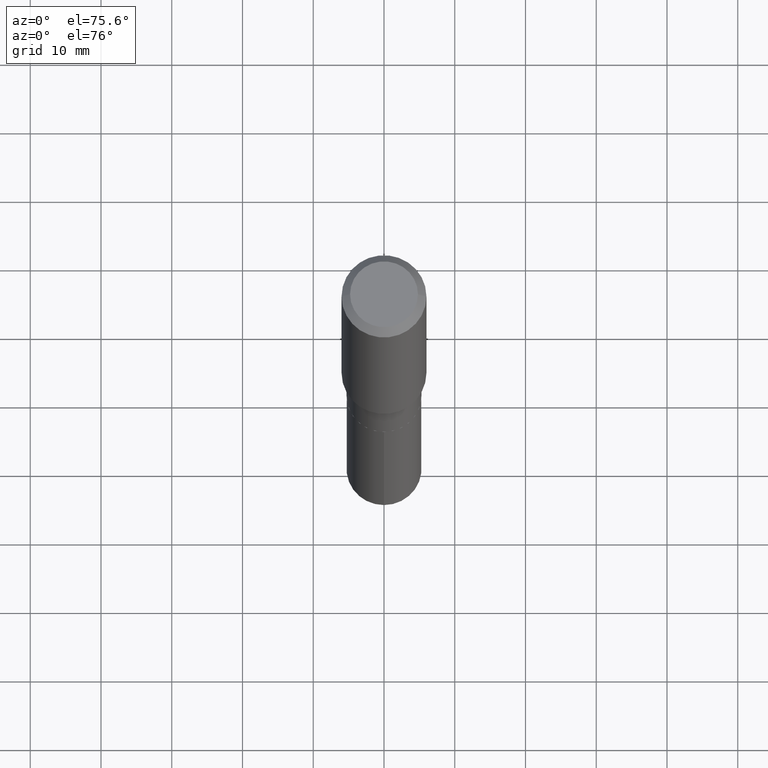
[diagram: clean part render]
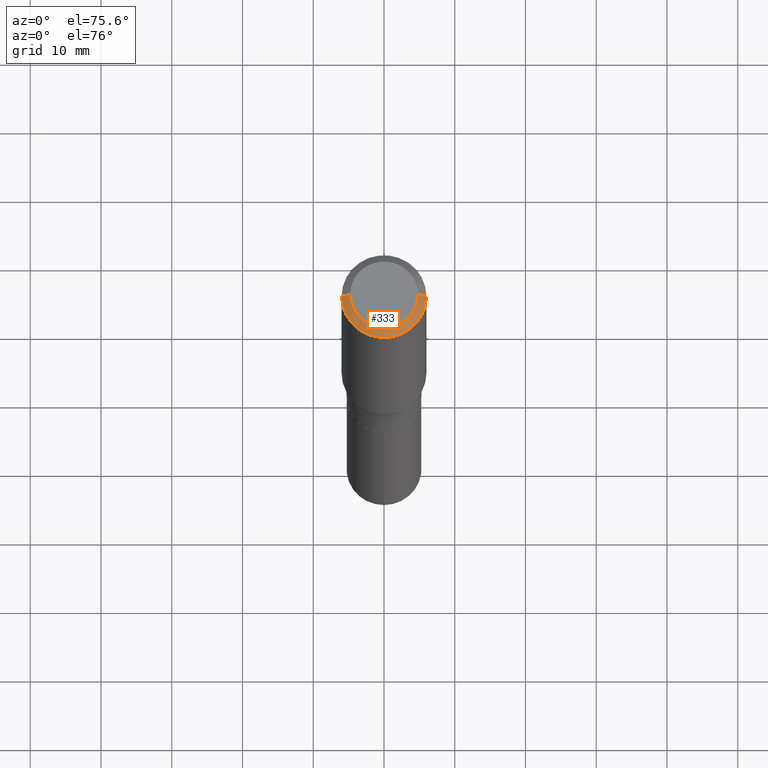
[diagram: same view with one face highlighted and labeled with its STEP entity id]
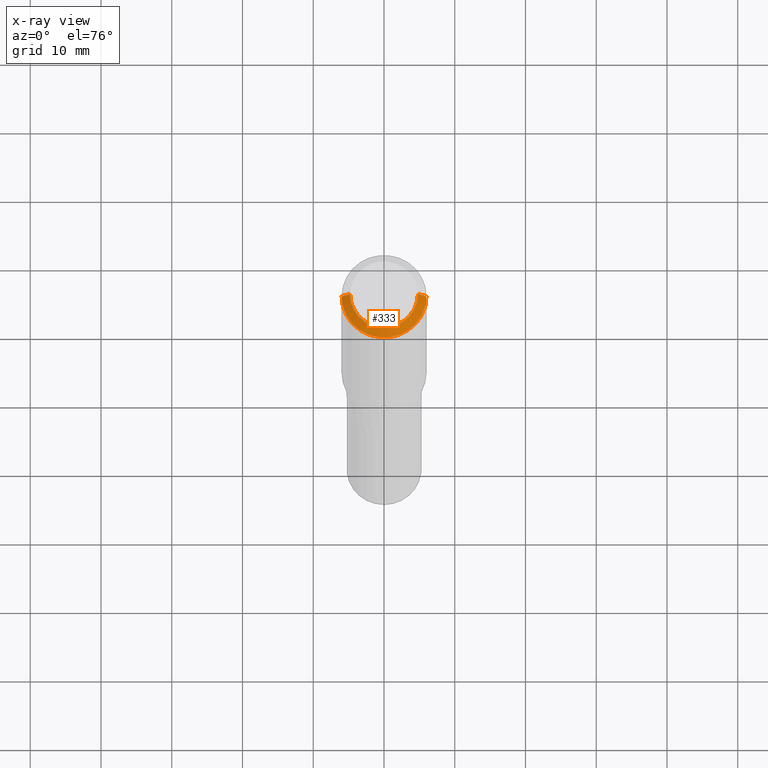
[diagram: x-ray of the same camera — body ghosted, the highlighted face saturated]
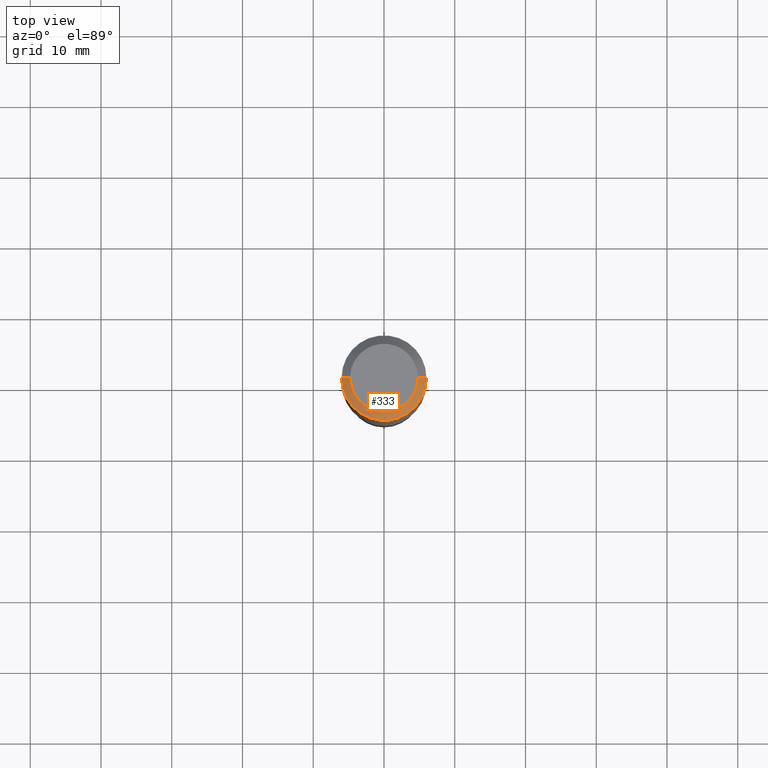
[diagram: same view with one face highlighted and labeled with its STEP entity id]
A machine part, auxiliary view. The second image highlights one B-rep face of the part: STEP entity #333.
The next image is the same camera in x-ray: the body ghosted, the highlighted face saturated — about 0% of this face is hidden behind the body in this view.
A second angle (top view) of the same face is appended — the face is thin or edge-on in the first view.
In plain terms, the highlighted conical surface has half-angle 45 deg.
Its self-contained STEP definition (entity closure, byte-faithful):
#4 = CIRCLE ( 'NONE', #62, 0.1889600000000000168 ) ;
#33 = AXIS2_PLACEMENT_3D ( 'NONE', #297, #299, #56 ) ;
#34 = LINE ( 'NONE', #139, #279 ) ;
#55 = ORIENTED_EDGE ( 'NONE', *, *, #440, .T. ) ;
#56 = DIRECTION ( 'NONE',  ( -1.000000000000000000, 6.982962677686266711E-15, 0.000000000000000000 ) ) ;
#62 = AXIS2_PLACEMENT_3D ( 'NONE', #453, #138, #414 ) ;
#90 = ORIENTED_EDGE ( 'NONE', *, *, #312, .F. ) ;
#96 = DIRECTION ( 'NONE',  ( 1.000000000000000000, -6.982962677686266711E-15, 0.000000000000000000 ) ) ;
#105 = CARTESIAN_POINT ( 'NONE',  ( -0.2361999999999999933, -1.476932286640498674E-15, -0.04724000000000028177 ) ) ;
#109 = DIRECTION ( 'NONE',  ( 0.7071067811865453523, -7.319954787623248157E-15, -0.7071067811865496822 ) ) ;
#127 = CARTESIAN_POINT ( 'NONE',  ( 0.1889600000000000168, -1.540873453589747738E-15, 3.855188123725863225E-18 ) ) ;
#138 = DIRECTION ( 'NONE',  ( -2.445468806185136597E-29, 3.491481338843145583E-15, 1.000000000000000000 ) ) ;
#139 = CARTESIAN_POINT ( 'NONE',  ( 0.2361999999999999933, -1.785387205520586782E-15, -0.04724000000000028177 ) ) ;
#147 = FACE_OUTER_BOUND ( 'NONE', #355, .T. ) ;
#160 = ORIENTED_EDGE ( 'NONE', *, *, #234, .F. ) ;
#200 = EDGE_CURVE ( 'NONE', #239, #275, #372, .T. ) ;
#216 = CIRCLE ( 'NONE', #254, 0.2361999999999999933 ) ;
#234 = EDGE_CURVE ( 'NONE', #488, #344, #34, .T. ) ;
#239 = VERTEX_POINT ( 'NONE', #281 ) ;
#254 = AXIS2_PLACEMENT_3D ( 'NONE', #316, #437, #96 ) ;
#263 = VECTOR ( 'NONE', #415, 39.37007874015748143 ) ;
#275 = VERTEX_POINT ( 'NONE', #105 ) ;
#279 = VECTOR ( 'NONE', #109, 39.37007874015748143 ) ;
#281 = CARTESIAN_POINT ( 'NONE',  ( -0.1889600000000000168, 1.401969416799070942E-15, 3.855188123706346622E-18 ) ) ;
#290 = CARTESIAN_POINT ( 'NONE',  ( -0.2361999999999999933, 1.484438206022545019E-15, -0.04724000000000028177 ) ) ;
#291 = CARTESIAN_POINT ( 'NONE',  ( 0.2361999999999999933, -1.814313362916447440E-15, -0.04724000000000028177 ) ) ;
#297 = CARTESIAN_POINT ( 'NONE',  ( 1.155239464041865506E-30, -1.649375784469511859E-16, -0.04724000000000028177 ) ) ;
#299 = DIRECTION ( 'NONE',  ( 2.445468806185136597E-29, -3.491481338843145583E-15, -1.000000000000000000 ) ) ;
#312 = EDGE_CURVE ( 'NONE', #239, #488, #4, .T. ) ;
#316 = CARTESIAN_POINT ( 'NONE',  ( 1.155239464041865506E-30, -1.649375784469511859E-16, -0.04724000000000028177 ) ) ;
#333 = ADVANCED_FACE ( 'NONE', ( #147 ), #378, .T. ) ;
#341 = ORIENTED_EDGE ( 'NONE', *, *, #200, .T. ) ;
#344 = VERTEX_POINT ( 'NONE', #291 ) ;
#355 = EDGE_LOOP ( 'NONE', ( #160, #90, #341, #55 ) ) ;
#372 = LINE ( 'NONE', #290, #263 ) ;
#378 = CONICAL_SURFACE ( 'NONE', #33, 0.2361999999999999933, 0.7853981633974452814 ) ;
#414 = DIRECTION ( 'NONE',  ( 1.000000000000000000, -6.982962677686266711E-15, 4.876185090822587894E-29 ) ) ;
#415 = DIRECTION ( 'NONE',  ( -0.7071067811865453523, 2.468850131082234184E-15, -0.7071067811865496822 ) ) ;
#437 = DIRECTION ( 'NONE',  ( -2.445468806185136597E-29, 3.491481338843145583E-15, 1.000000000000000000 ) ) ;
#440 = EDGE_CURVE ( 'NONE', #275, #344, #216, .T. ) ;
#453 = CARTESIAN_POINT ( 'NONE',  ( -9.427742298522546243E-47, 1.346031739168365344E-32, 3.855188123715862256E-18 ) ) ;
#488 = VERTEX_POINT ( 'NONE', #127 ) ;